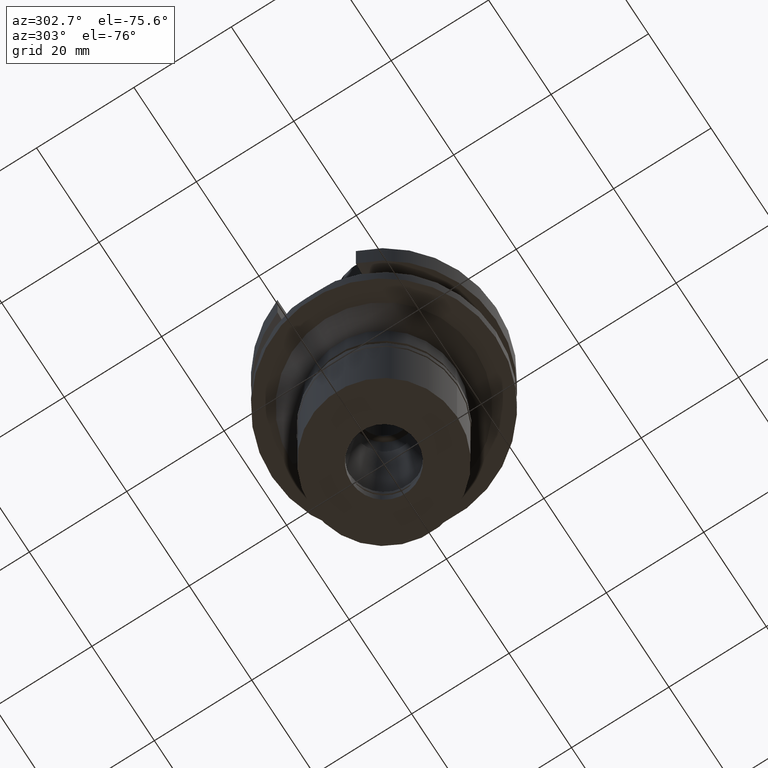
[diagram: clean part render]
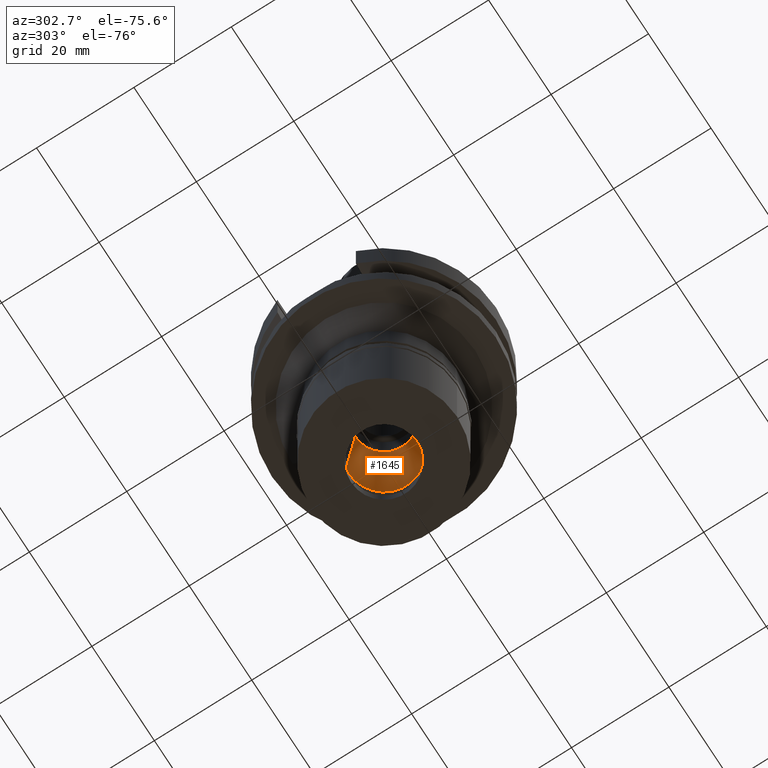
[diagram: same view with one face highlighted and labeled with its STEP entity id]
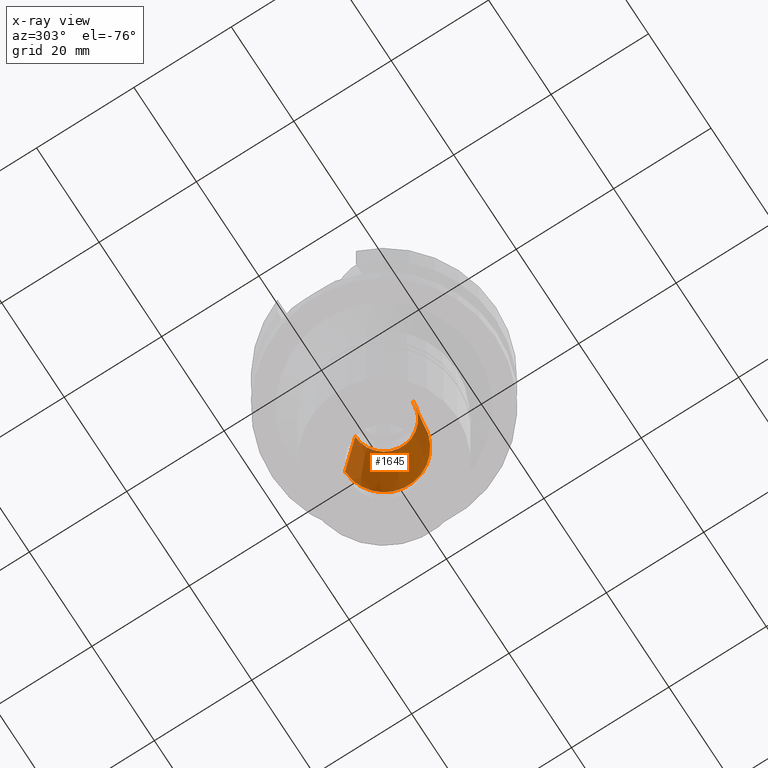
[diagram: x-ray of the same camera — body ghosted, the highlighted face saturated]
A machine part, auxiliary view. The second image highlights one B-rep face of the part: STEP entity #1645.
The next image is the same camera in x-ray: the body ghosted, the highlighted face saturated — about 9% of this face is hidden behind the body in this view.
In plain terms, the highlighted conical surface has half-angle 6 deg.
Its self-contained STEP definition (entity closure, byte-faithful):
#103 = EDGE_CURVE ( 'NONE', #566, #1163, #1381, .T. ) ;
#213 = AXIS2_PLACEMENT_3D ( 'NONE', #1891, #1395, #270 ) ;
#270 = DIRECTION ( 'NONE',  ( 0.0000000000000000000, 1.000000000000000000, 0.0000000000000000000 ) ) ;
#274 = DIRECTION ( 'NONE',  ( 0.0000000000000000000, -0.1045284632676965891, 0.9945218953682687379 ) ) ;
#402 = FACE_OUTER_BOUND ( 'NONE', #718, .T. ) ;
#413 = EDGE_CURVE ( 'NONE', #515, #566, #2013, .T. ) ;
#414 = DIRECTION ( 'NONE',  ( 0.0000000000000000000, 0.0000000000000000000, -1.000000000000000000 ) ) ;
#424 = DIRECTION ( 'NONE',  ( 0.0000000000000000000, -1.000000000000000000, 0.0000000000000000000 ) ) ;
#451 = DIRECTION ( 'NONE',  ( 0.0000000000000000000, 0.1045284632676965891, 0.9945218953682687379 ) ) ;
#515 = VERTEX_POINT ( 'NONE', #1703 ) ;
#566 = VERTEX_POINT ( 'NONE', #1009 ) ;
#607 = CARTESIAN_POINT ( 'NONE',  ( 0.0000000000000000000, 0.0000000000000000000, -30.00000000000000000 ) ) ;
#682 = AXIS2_PLACEMENT_3D ( 'NONE', #2467, #414, #1330 ) ;
#718 = EDGE_LOOP ( 'NONE', ( #2914, #2039, #1223, #1054 ) ) ;
#886 = CARTESIAN_POINT ( 'NONE',  ( 0.0000000000000000000, -5.897915294685999399, -30.00000000000000000 ) ) ;
#974 = CONICAL_SURFACE ( 'NONE', #682, 6.948957647342999699, 0.1047197551196402399 ) ;
#1009 = CARTESIAN_POINT ( 'NONE',  ( 0.0000000000000000000, -8.000000000000000000, -50.00000000000000000 ) ) ;
#1054 = ORIENTED_EDGE ( 'NONE', *, *, #1852, .F. ) ;
#1155 = CARTESIAN_POINT ( 'NONE',  ( 0.0000000000000000000, 8.000000000000000000, -50.00000000000000000 ) ) ;
#1163 = VERTEX_POINT ( 'NONE', #886 ) ;
#1223 = ORIENTED_EDGE ( 'NONE', *, *, #2332, .T. ) ;
#1330 = DIRECTION ( 'NONE',  ( 0.0000000000000000000, -1.000000000000000000, 0.0000000000000000000 ) ) ;
#1357 = CARTESIAN_POINT ( 'NONE',  ( 0.0000000000000000000, 5.897915294685999399, -30.00000000000000000 ) ) ;
#1381 = LINE ( 'NONE', #2508, #1583 ) ;
#1395 = DIRECTION ( 'NONE',  ( 0.0000000000000000000, 0.0000000000000000000, -1.000000000000000000 ) ) ;
#1519 = DIRECTION ( 'NONE',  ( 0.0000000000000000000, 0.0000000000000000000, 1.000000000000000000 ) ) ;
#1583 = VECTOR ( 'NONE', #451, 1000.000000000000227 ) ;
#1645 = ADVANCED_FACE ( 'NONE', ( #402 ), #974, .F. ) ;
#1703 = CARTESIAN_POINT ( 'NONE',  ( 0.0000000000000000000, 8.000000000000000000, -50.00000000000000000 ) ) ;
#1833 = VECTOR ( 'NONE', #274, 1000.000000000000227 ) ;
#1852 = EDGE_CURVE ( 'NONE', #515, #2273, #2124, .T. ) ;
#1891 = CARTESIAN_POINT ( 'NONE',  ( 0.0000000000000000000, 0.0000000000000000000, -50.00000000000000000 ) ) ;
#2013 = CIRCLE ( 'NONE', #213, 8.000000000000000000 ) ;
#2039 = ORIENTED_EDGE ( 'NONE', *, *, #103, .T. ) ;
#2124 = LINE ( 'NONE', #1155, #1833 ) ;
#2273 = VERTEX_POINT ( 'NONE', #1357 ) ;
#2332 = EDGE_CURVE ( 'NONE', #1163, #2273, #2456, .T. ) ;
#2456 = CIRCLE ( 'NONE', #2553, 5.897915294685999399 ) ;
#2467 = CARTESIAN_POINT ( 'NONE',  ( 0.0000000000000000000, 0.0000000000000000000, -40.00000000000000000 ) ) ;
#2508 = CARTESIAN_POINT ( 'NONE',  ( 0.0000000000000000000, -8.000000000000000000, -50.00000000000000000 ) ) ;
#2553 = AXIS2_PLACEMENT_3D ( 'NONE', #607, #1519, #424 ) ;
#2914 = ORIENTED_EDGE ( 'NONE', *, *, #413, .T. ) ;